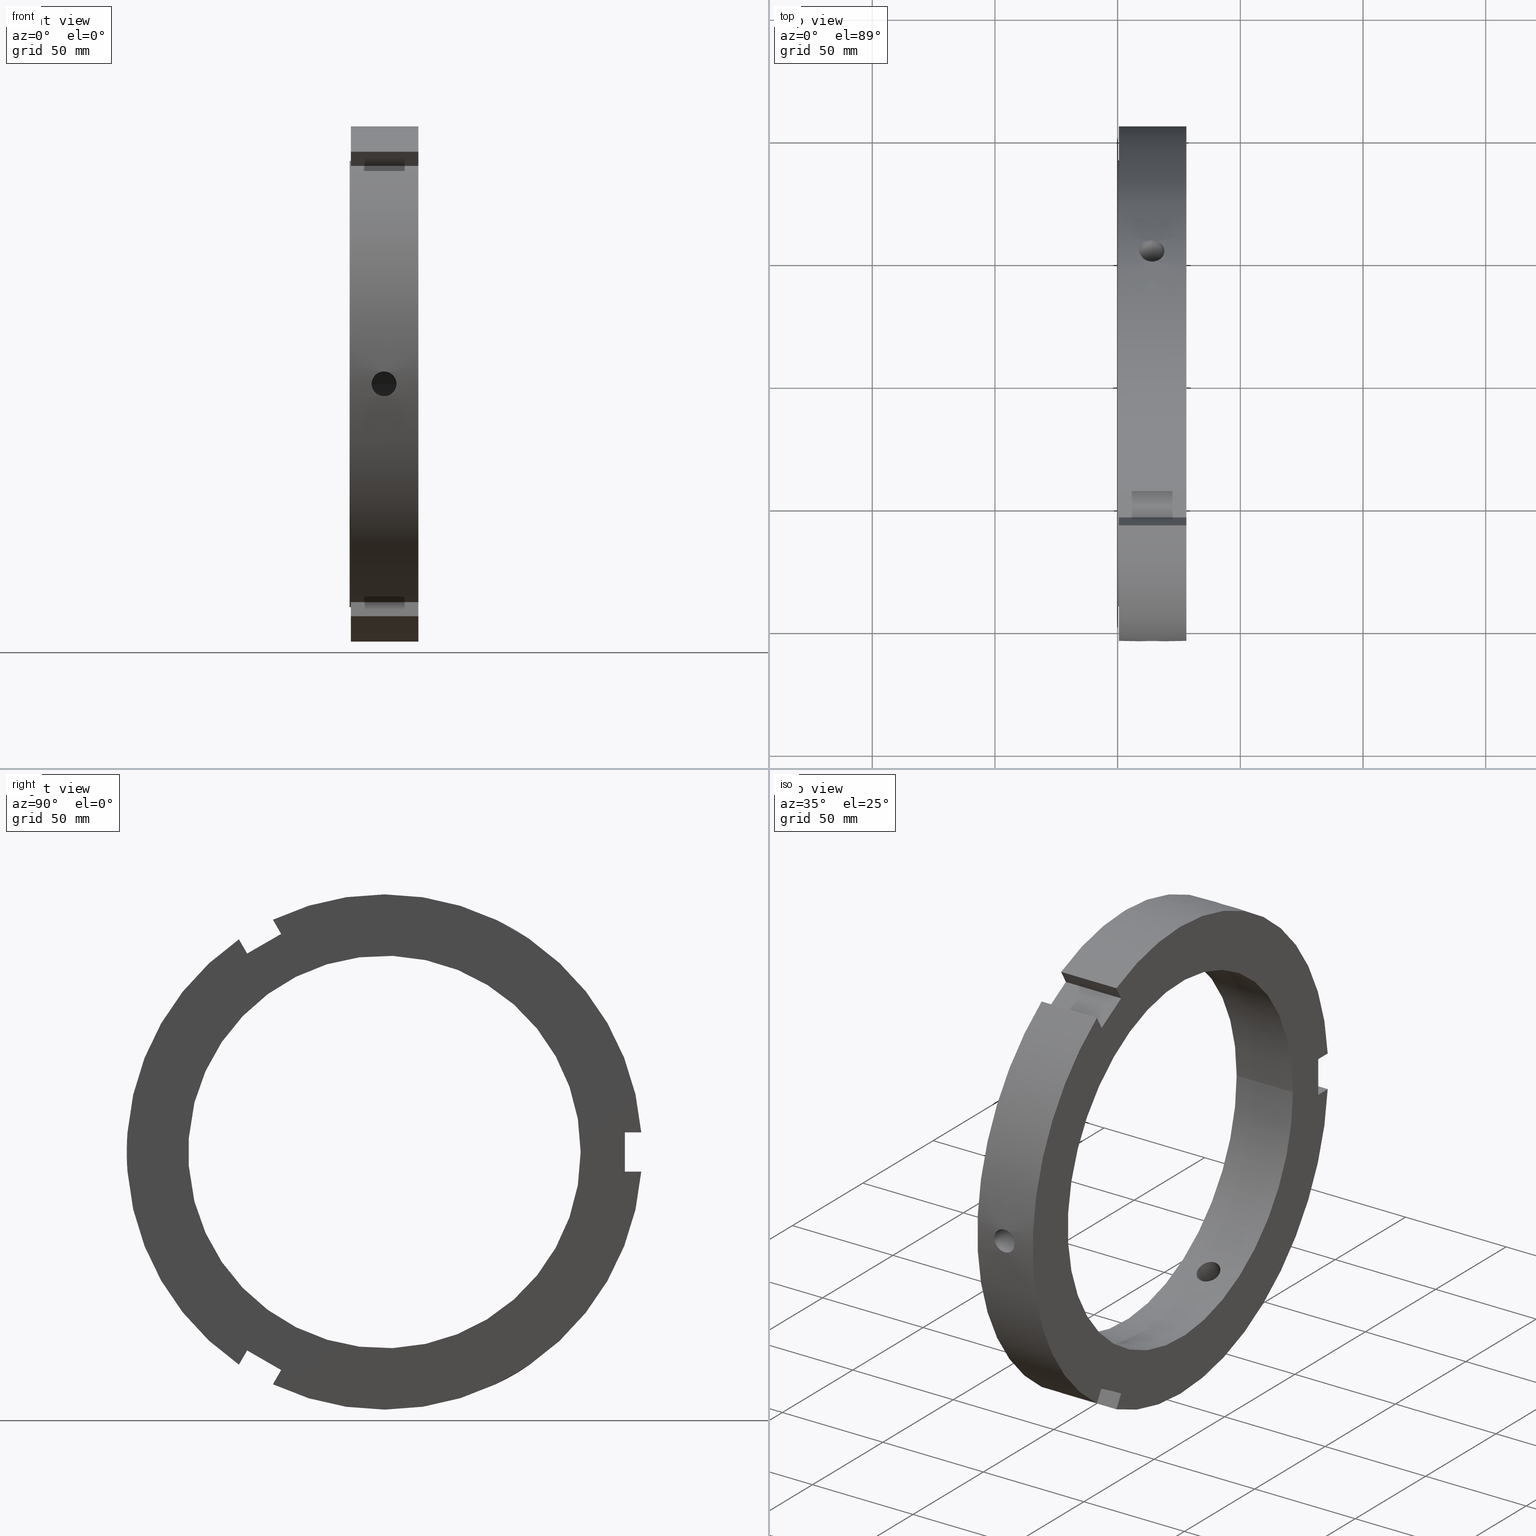
[diagram: canonical four-view strip — front | top / right | iso, engineering-drawing reading convention]
A machine part, canonical four-view strip (front | top / right | iso — engineering-drawing reading convention). The complete STEP part file that produces these views, byte-faithful:
ISO-10303-21;
HEADER;
/****************************************************************
 * Generated by software with PDE/Lib inside                    *
 * PDElib Version v51a, created Thu 01/14/2010                  *
 * ITI Transcendata (http://www.transcendata.com/)              *
 ****************************************************************/
FILE_DESCRIPTION((''),'2;1');
FILE_NAME('\\\\CAD-SVN\\cad-svn\\\X2\628088538AB2\X0\\\FKD\X2\88FD4F5C\X0\SP\\\X2\90E854C130E930A430D630E930EA\X0\\\HP \X2\30A230C330D730C730FC30C87528\X0\CAD\X2\30C730FC30BFFF0867007D42FF09\X0\\\3D data\\ZMT\\FKD ZMT160.stp','2014-07-16T14:52:18',('fkd-ct1n'),(''),'Autodesk Inventor 2011','Autodesk Inventor 2011','');
FILE_SCHEMA(('AUTOMOTIVE_DESIGN { 1 0 10303 214 1 1 1 1 }'));
ENDSEC;
DATA;
#5=APPLICATION_CONTEXT('automotive design');
#6=APPLICATION_PROTOCOL_DEFINITION('International Standard','automotive_design',2001,#5);
#7=PRODUCT_CONTEXT('',#5,'mechanical');
#8=PRODUCT('FKD ZMT160','FKD ZMT160',$,(#7));
#9=PRODUCT_RELATED_PRODUCT_CATEGORY('part',$,(#8));
#10=PRODUCT_DEFINITION_FORMATION('',$,#8);
#11=PRODUCT_DEFINITION_CONTEXT('part definition',#5,'design');
#12=PRODUCT_DEFINITION('',$,#10,#11);
#18=(NAMED_UNIT(*)PLANE_ANGLE_UNIT()SI_UNIT($,.RADIAN.));
#19=DIMENSIONAL_EXPONENTS(0.0,0.0,0.0,0.0,0.0,0.0,0.0);
#20=PLANE_ANGLE_MEASURE_WITH_UNIT(PLANE_ANGLE_MEASURE(0.017453292500000),#18);
#24=(CONVERSION_BASED_UNIT('DEGREE',#20)NAMED_UNIT(#19)PLANE_ANGLE_UNIT());
#28=(NAMED_UNIT(*)SI_UNIT($,.STERADIAN.)SOLID_ANGLE_UNIT());
#32=(LENGTH_UNIT()NAMED_UNIT(*)SI_UNIT(.MILLI.,.METRE.));
#34=UNCERTAINTY_MEASURE_WITH_UNIT(LENGTH_MEASURE(0.010000000000000),#32,'DISTANCE_ACCURACY_VALUE','');
#36=(GEOMETRIC_REPRESENTATION_CONTEXT(3)GLOBAL_UNCERTAINTY_ASSIGNED_CONTEXT((#34))GLOBAL_UNIT_ASSIGNED_CONTEXT((#24,#28,#32))REPRESENTATION_CONTEXT('None','None'));
#37=AXIS2_PLACEMENT_3D('',#38,#39,#40);
#38=CARTESIAN_POINT('',(0.0,0.0,0.0));
#39=DIRECTION('',(0.0,0.0,1.0));
#40=DIRECTION('',(1.0,0.0,0.0));
#41=SHAPE_REPRESENTATION('',(#37),#36);
#42=PRODUCT_DEFINITION_SHAPE('','',#12);
#43=SHAPE_DEFINITION_REPRESENTATION(#42,#41);
#49=(NAMED_UNIT(*)PLANE_ANGLE_UNIT()SI_UNIT($,.RADIAN.));
#50=DIMENSIONAL_EXPONENTS(0.0,0.0,0.0,0.0,0.0,0.0,0.0);
#51=PLANE_ANGLE_MEASURE_WITH_UNIT(PLANE_ANGLE_MEASURE(0.017453292500000),#49);
#55=(CONVERSION_BASED_UNIT('DEGREE',#51)NAMED_UNIT(#50)PLANE_ANGLE_UNIT());
#59=(NAMED_UNIT(*)SI_UNIT($,.STERADIAN.)SOLID_ANGLE_UNIT());
#63=(LENGTH_UNIT()NAMED_UNIT(*)SI_UNIT(.MILLI.,.METRE.));
#65=UNCERTAINTY_MEASURE_WITH_UNIT(LENGTH_MEASURE(0.000001000000000),#63,'DISTANCE_ACCURACY_VALUE','');
#67=(GEOMETRIC_REPRESENTATION_CONTEXT(3)GLOBAL_UNCERTAINTY_ASSIGNED_CONTEXT((#65))GLOBAL_UNIT_ASSIGNED_CONTEXT((#55,#59,#63))REPRESENTATION_CONTEXT('','3D'));
#68=CARTESIAN_POINT('',(27.999999999999979,-55.928203230275557,-80.870489570874966));
#69=DIRECTION('',(0.0,-0.866025403784438,0.500000000000000));
#70=DIRECTION('',(-1.0,0.0,0.0));
#71=AXIS2_PLACEMENT_3D('',#68,#69,#70);
#72=PLANE('',#71);
#73=CARTESIAN_POINT('',(0.499999999999972,-55.928203230275557,-80.870489570874966));
#74=VERTEX_POINT('',#73);
#75=CARTESIAN_POINT('',(0.499999999999972,-59.275600491266481,-86.668351700028140));
#76=VERTEX_POINT('',#75);
#77=CARTESIAN_POINT('',(0.499999999999972,-55.928203230275557,-80.870489570874980));
#78=DIRECTION('',(0.0,-0.500000000000001,-0.866025403784438));
#79=VECTOR('',#78,6.694794521981848);
#80=LINE('',#77,#79);
#81=EDGE_CURVE('',#74,#76,#80,.T.);
#82=ORIENTED_EDGE('',*,*,#81,.F.);
#83=CARTESIAN_POINT('',(27.999999999999979,-55.928203230275557,-80.870489570874966));
#84=VERTEX_POINT('',#83);
#85=CARTESIAN_POINT('',(27.999999999999979,-55.928203230275557,-80.870489570874966));
#86=DIRECTION('',(-1.0,0.0,0.0));
#87=VECTOR('',#86,27.500000000000007);
#88=LINE('',#85,#87);
#89=EDGE_CURVE('',#84,#74,#88,.T.);
#90=ORIENTED_EDGE('',*,*,#89,.F.);
#91=CARTESIAN_POINT('',(27.999999999999979,-59.275600491266481,-86.668351700028140));
#92=VERTEX_POINT('',#91);
#93=CARTESIAN_POINT('',(27.999999999999979,-59.275600491266481,-86.668351700028154));
#94=DIRECTION('',(0.0,0.500000000000000,0.866025403784439));
#95=VECTOR('',#94,6.694794521981860);
#96=LINE('',#93,#95);
#97=EDGE_CURVE('',#92,#84,#96,.T.);
#98=ORIENTED_EDGE('',*,*,#97,.F.);
#99=CARTESIAN_POINT('',(0.499999999999972,-59.275600491266474,-86.668351700028140));
#100=DIRECTION('',(1.0,0.0,0.0));
#101=VECTOR('',#100,27.500000000000007);
#102=LINE('',#99,#101);
#103=EDGE_CURVE('',#76,#92,#102,.T.);
#104=ORIENTED_EDGE('',*,*,#103,.F.);
#105=EDGE_LOOP('',(#82,#90,#98,#104));
#106=FACE_OUTER_BOUND('',#105,.T.);
#107=ADVANCED_FACE('',(#106),#72,.F.);
#108=CARTESIAN_POINT('',(27.999999999999979,-45.571796769724543,-94.932667397366046));
#109=DIRECTION('',(0.0,0.866025403784438,-0.500000000000001));
#110=DIRECTION('',(1.0,0.0,0.0));
#111=AXIS2_PLACEMENT_3D('',#108,#109,#110);
#112=PLANE('',#111);
#113=CARTESIAN_POINT('',(0.499999999999972,-45.419194030715467,-94.668351700028126));
#114=VERTEX_POINT('',#113);
#115=CARTESIAN_POINT('',(0.499999999999972,-42.071796769724529,-88.870489570874980));
#116=VERTEX_POINT('',#115);
#117=CARTESIAN_POINT('',(0.499999999999974,-45.419194030715488,-94.668351700028154));
#118=DIRECTION('',(0.0,0.500000000000000,0.866025403784438));
#119=VECTOR('',#118,6.694794521981844);
#120=LINE('',#117,#119);
#121=EDGE_CURVE('',#114,#116,#120,.T.);
#122=ORIENTED_EDGE('',*,*,#121,.F.);
#123=CARTESIAN_POINT('',(27.999999999999979,-45.419194030715467,-94.668351700028126));
#124=VERTEX_POINT('',#123);
#125=CARTESIAN_POINT('',(27.999999999999979,-45.419194030715460,-94.668351700028126));
#126=DIRECTION('',(-1.0,0.0,0.0));
#127=VECTOR('',#126,27.500000000000007);
#128=LINE('',#125,#127);
#129=EDGE_CURVE('',#124,#114,#128,.T.);
#130=ORIENTED_EDGE('',*,*,#129,.F.);
#131=CARTESIAN_POINT('',(27.999999999999979,-42.071796769724529,-88.870489570874980));
#132=VERTEX_POINT('',#131);
#133=CARTESIAN_POINT('',(27.999999999999979,-42.071796769724550,-88.870489570874980));
#134=DIRECTION('',(0.0,-0.500000000000001,-0.866025403784438));
#135=VECTOR('',#134,6.694794521981848);
#136=LINE('',#133,#135);
#137=EDGE_CURVE('',#132,#124,#136,.T.);
#138=ORIENTED_EDGE('',*,*,#137,.F.);
#139=CARTESIAN_POINT('',(27.999999999999979,-42.071796769724529,-88.870489570874980));
#140=DIRECTION('',(-1.0,0.0,0.0));
#141=VECTOR('',#140,27.500000000000007);
#142=LINE('',#139,#141);
#143=EDGE_CURVE('',#132,#116,#142,.T.);
#144=ORIENTED_EDGE('',*,*,#143,.T.);
#145=EDGE_LOOP('',(#122,#130,#138,#144));
#146=FACE_OUTER_BOUND('',#145,.T.);
#147=ADVANCED_FACE('',(#146),#112,.F.);
#148=CARTESIAN_POINT('',(27.999999999999979,-42.071796769724529,-88.870489570874980));
#149=DIRECTION('',(0.0,0.500000000000001,0.866025403784438));
#150=DIRECTION('',(0.0,-0.866025403784438,0.500000000000000));
#151=AXIS2_PLACEMENT_3D('',#148,#149,#150);
#152=PLANE('',#151);
#153=CARTESIAN_POINT('',(0.499999999999969,-42.071796769724550,-88.870489570874980));
#154=DIRECTION('',(0.0,-0.866025403784438,0.500000000000000));
#155=VECTOR('',#154,16.000000000000014);
#156=LINE('',#153,#155);
#157=EDGE_CURVE('',#116,#74,#156,.T.);
#158=ORIENTED_EDGE('',*,*,#157,.F.);
#159=ORIENTED_EDGE('',*,*,#143,.F.);
#160=CARTESIAN_POINT('',(27.999999999999979,-55.928203230275585,-80.870489570874980));
#161=DIRECTION('',(0.0,0.866025403784438,-0.500000000000000));
#162=VECTOR('',#161,16.000000000000014);
#163=LINE('',#160,#162);
#164=EDGE_CURVE('',#84,#132,#163,.T.);
#165=ORIENTED_EDGE('',*,*,#164,.F.);
#166=ORIENTED_EDGE('',*,*,#89,.T.);
#167=EDGE_LOOP('',(#158,#159,#165,#166));
#168=FACE_OUTER_BOUND('',#167,.T.);
#169=ADVANCED_FACE('',(#168),#152,.F.);
#170=CARTESIAN_POINT('',(13.999999999999979,149.043539653364690,258.150983219534000));
#171=DIRECTION('',(0.0,-0.500000000000001,-0.866025403784438));
#172=DIRECTION('',(-1.0,0.0,0.0));
#173=AXIS2_PLACEMENT_3D('',#170,#171,#172);
#174=CYLINDRICAL_SURFACE('',#173,5.053000000000000);
#175=CARTESIAN_POINT('',(13.999999999999979,56.815198724829017,88.300810833526242));
#176=VERTEX_POINT('',#175);
#177=CARTESIAN_POINT('',(13.999999999999979,56.815198724829010,88.300810833526256));
#178=CARTESIAN_POINT('',(14.634571136471465,56.815198724829010,88.300810833526256));
#179=CARTESIAN_POINT('',(15.311372523950229,56.708528601713645,88.369731266656757));
#180=CARTESIAN_POINT('',(16.556298304530191,56.273388234399732,88.647461310893618));
#181=CARTESIAN_POINT('',(17.124431001535733,55.944757503649846,88.855982155170636));
#182=CARTESIAN_POINT('',(18.021590047831666,55.183068389292970,89.331016002124230));
#183=CARTESIAN_POINT('',(18.410453091665811,54.699181388736676,89.629164600580467));
#184=CARTESIAN_POINT('',(18.926160779767741,53.632510079573741,90.271487492775748));
#185=CARTESIAN_POINT('',(19.052999999999976,53.049554625087438,90.615381886637437));
#186=CARTESIAN_POINT('',(19.052999999999976,51.950445374912647,91.249952908094642));
#187=CARTESIAN_POINT('',(18.926160779767752,51.361146366366242,91.582859944023639));
#188=CARTESIAN_POINT('',(18.410453091665833,50.271542769711374,92.185462949149098));
#189=CARTESIAN_POINT('',(18.021590047831662,49.771395009067390,92.455447084963794));
#190=CARTESIAN_POINT('',(17.124431001535729,48.979159072769676,92.877572284306126));
#191=CARTESIAN_POINT('',(16.556298304530191,48.634259359032285,93.057914423461270));
#192=CARTESIAN_POINT('',(15.311372523950233,48.176167901672017,93.295892013648796));
#193=CARTESIAN_POINT('',(14.634571136471466,48.063145994183472,93.353810833526282));
#194=CARTESIAN_POINT('',(13.365428863528493,48.063145994183472,93.353810833526282));
#195=CARTESIAN_POINT('',(12.688627476049724,48.176167901672017,93.295892013648796));
#196=CARTESIAN_POINT('',(11.443701695469766,48.634259359032285,93.057914423461270));
#197=CARTESIAN_POINT('',(10.875568998464228,48.979159072769676,92.877572284306126));
#198=CARTESIAN_POINT('',(9.978409952168297,49.771395009067390,92.455447084963794));
#199=CARTESIAN_POINT('',(9.589546908334135,50.271542769711374,92.185462949149127));
#200=CARTESIAN_POINT('',(9.073839220232211,51.361146366366235,91.582859944023653));
#201=CARTESIAN_POINT('',(8.946999999999978,51.950445374912661,91.249952908094642));
#202=CARTESIAN_POINT('',(8.946999999999981,53.049554625087438,90.615381886637437));
#203=CARTESIAN_POINT('',(9.073839220232218,53.632510079573741,90.271487492775748));
#204=CARTESIAN_POINT('',(9.589546908334143,54.699181388736676,89.629164600580467));
#205=CARTESIAN_POINT('',(9.978409952168294,55.183068389292970,89.331016002124230));
#206=CARTESIAN_POINT('',(10.875568998464223,55.944757503649846,88.855982155170636));
#207=CARTESIAN_POINT('',(11.443701695469759,56.273388234399732,88.647461310893632));
#208=CARTESIAN_POINT('',(12.688627476049723,56.708528601713645,88.369731266656771));
#209=CARTESIAN_POINT('',(13.365428863528495,56.815198724829017,88.300810833526242));
#210=CARTESIAN_POINT('',(13.999999999999979,56.815198724829017,88.300810833526242));
#211=B_SPLINE_CURVE_WITH_KNOTS('',3,(#177,#178,#179,#180,#181,#182,#183,#184,#185,#186,#187,#188,#189,#190,#191,#192,#193,#194,#195,#196,#197,#198,#199,#200,#201,#202,#203,#204,#205,#206,#207,#208,#209,#210),.UNSPECIFIED.,.T.,.U.,(4,2,2,2,2,2,2,2,2,2,2,2,2,2,2,2,4),(0.0,0.190371340941446,0.380742681882891,0.571113988320056,0.761485294757221,0.951856601194387,1.142227907631552,1.332599248572998,1.522970589514444,1.713341930455890,1.903713271397336,2.094084577834502,2.284455884271667,2.474827190708832,2.665198497145997,2.855569838087442,3.045941179028888),.UNSPECIFIED.);
#212=EDGE_CURVE('',#176,#176,#211,.T.);
#213=ORIENTED_EDGE('',*,*,#212,.F.);
#214=EDGE_LOOP('',(#213));
#215=FACE_OUTER_BOUND('',#214,.T.);
#216=CARTESIAN_POINT('',(13.999999999999979,44.296156597450050,66.617193806810747));
#217=VERTEX_POINT('',#216);
#218=CARTESIAN_POINT('',(13.999999999999979,44.296156597450036,66.617193806810747));
#219=CARTESIAN_POINT('',(13.365352639917933,44.296156597450036,66.617193806810747));
#220=CARTESIAN_POINT('',(12.688518508196953,44.190457807691260,66.687856167907654));
#221=CARTESIAN_POINT('',(11.443613768217025,43.758895766243270,66.971828127421446));
#222=CARTESIAN_POINT('',(10.875528814468643,43.432823006197495,67.184756272600595));
#223=CARTESIAN_POINT('',(9.978450296488965,42.675983174635661,67.668028267102954));
#224=CARTESIAN_POINT('',(9.589598745661265,42.194680176431206,67.970557144507353));
#225=CARTESIAN_POINT('',(9.073868925500680,41.131612416153686,68.619079954267178));
#226=CARTESIAN_POINT('',(8.946999999999981,40.549620440194225,68.964708793656825));
#227=CARTESIAN_POINT('',(8.946999999999978,39.450379559805846,69.599355811853314));
#228=CARTESIAN_POINT('',(9.073868925500678,38.860060216634153,69.930561228138075));
#229=CARTESIAN_POINT('',(9.589598745661249,37.766889108309712,70.526943509602717));
#230=CARTESIAN_POINT('',(9.978450296488967,37.264239915996896,70.792499694263199));
#231=CARTESIAN_POINT('',(10.875528814468641,36.467294176039346,71.206306217740519));
#232=CARTESIAN_POINT('',(11.443613768217011,36.119856613110599,71.382229438832681));
#233=CARTESIAN_POINT('',(12.688518508196939,35.658148661485214,71.613987150278831));
#234=CARTESIAN_POINT('',(13.365352639917932,35.544103866804491,71.670193806810715));
#235=CARTESIAN_POINT('',(14.634647360082024,35.544103866804491,71.670193806810715));
#236=CARTESIAN_POINT('',(15.311481491803010,35.658148661485214,71.613987150278831));
#237=CARTESIAN_POINT('',(16.556386231782938,36.119856613110599,71.382229438832695));
#238=CARTESIAN_POINT('',(17.124471185531316,36.467294176039346,71.206306217740519));
#239=CARTESIAN_POINT('',(18.021549703510988,37.264239915996889,70.792499694263199));
#240=CARTESIAN_POINT('',(18.410401254338705,37.766889108309712,70.526943509602731));
#241=CARTESIAN_POINT('',(18.926131074499285,38.860060216634153,69.930561228138089));
#242=CARTESIAN_POINT('',(19.052999999999976,39.450379559805839,69.599355811853314));
#243=CARTESIAN_POINT('',(19.052999999999976,40.549620440194225,68.964708793656825));
#244=CARTESIAN_POINT('',(18.926131074499285,41.131612416153686,68.619079954267193));
#245=CARTESIAN_POINT('',(18.410401254338701,42.194680176431206,67.970557144507367));
#246=CARTESIAN_POINT('',(18.021549703510995,42.675983174635661,67.668028267102954));
#247=CARTESIAN_POINT('',(17.124471185531320,43.432823006197509,67.184756272600595));
#248=CARTESIAN_POINT('',(16.556386231782934,43.758895766243270,66.971828127421446));
#249=CARTESIAN_POINT('',(15.311481491803004,44.190457807691260,66.687856167907654));
#250=CARTESIAN_POINT('',(14.634647360082022,44.296156597450036,66.617193806810747));
#251=CARTESIAN_POINT('',(13.999999999999977,44.296156597450036,66.617193806810747));
#252=B_SPLINE_CURVE_WITH_KNOTS('',3,(#218,#219,#220,#221,#222,#223,#224,#225,#226,#227,#228,#229,#230,#231,#232,#233,#234,#235,#236,#237,#238,#239,#240,#241,#242,#243,#244,#245,#246,#247,#248,#249,#250,#251),.UNSPECIFIED.,.T.,.U.,(4,2,2,2,2,2,2,2,2,2,2,2,2,2,2,2,4),(0.0,0.190394208024614,0.380788416049228,0.571182521508171,0.761576626967114,0.951970732426058,1.142364837885001,1.332759045909616,1.523153253934230,1.713547461958844,1.903941669983459,2.094335775442402,2.284729880901345,2.475123986360289,2.665518091819231,2.855912299843846,3.046306507868460),.UNSPECIFIED.);
#253=EDGE_CURVE('',#217,#217,#252,.T.);
#254=ORIENTED_EDGE('',*,*,#253,.F.);
#255=EDGE_LOOP('',(#254));
#256=FACE_BOUND('',#255,.T.);
#257=ADVANCED_FACE('',(#215,#256),#174,.F.);
#258=CARTESIAN_POINT('',(27.999999999999979,-42.071796769724479,88.870489570875009));
#259=DIRECTION('',(0.0,0.866025403784439,0.500000000000000));
#260=DIRECTION('',(-1.0,0.0,0.0));
#261=AXIS2_PLACEMENT_3D('',#258,#259,#260);
#262=PLANE('',#261);
#263=CARTESIAN_POINT('',(0.499999999999972,-42.071796769724479,88.870489570875009));
#264=VERTEX_POINT('',#263);
#265=CARTESIAN_POINT('',(0.499999999999972,-45.419194030715396,94.668351700028182));
#266=VERTEX_POINT('',#265);
#267=CARTESIAN_POINT('',(0.499999999999972,-42.071796769724479,88.870489570875009));
#268=DIRECTION('',(0.0,-0.500000000000000,0.866025403784438));
#269=VECTOR('',#268,6.694794521981844);
#270=LINE('',#267,#269);
#271=EDGE_CURVE('',#264,#266,#270,.T.);
#272=ORIENTED_EDGE('',*,*,#271,.F.);
#273=CARTESIAN_POINT('',(27.999999999999979,-42.071796769724479,88.870489570875009));
#274=VERTEX_POINT('',#273);
#275=CARTESIAN_POINT('',(27.999999999999979,-42.071796769724479,88.870489570875009));
#276=DIRECTION('',(-1.0,0.0,0.0));
#277=VECTOR('',#276,27.500000000000007);
#278=LINE('',#275,#277);
#279=EDGE_CURVE('',#274,#264,#278,.T.);
#280=ORIENTED_EDGE('',*,*,#279,.F.);
#281=CARTESIAN_POINT('',(27.999999999999979,-45.419194030715396,94.668351700028182));
#282=VERTEX_POINT('',#281);
#283=CARTESIAN_POINT('',(27.999999999999979,-45.419194030715403,94.668351700028211));
#284=DIRECTION('',(0.0,0.499999999999999,-0.866025403784439));
#285=VECTOR('',#284,6.694794521981873);
#286=LINE('',#283,#285);
#287=EDGE_CURVE('',#282,#274,#286,.T.);
#288=ORIENTED_EDGE('',*,*,#287,.F.);
#289=CARTESIAN_POINT('',(0.499999999999972,-45.419194030715396,94.668351700028168));
#290=DIRECTION('',(1.0,0.0,0.0));
#291=VECTOR('',#290,27.500000000000007);
#292=LINE('',#289,#291);
#293=EDGE_CURVE('',#266,#282,#292,.T.);
#294=ORIENTED_EDGE('',*,*,#293,.F.);
#295=EDGE_LOOP('',(#272,#280,#288,#294));
#296=FACE_OUTER_BOUND('',#295,.T.);
#297=ADVANCED_FACE('',(#296),#262,.F.);
#298=CARTESIAN_POINT('',(27.999999999999979,-59.428203230275486,86.932667397366075));
#299=DIRECTION('',(0.0,-0.866025403784439,-0.500000000000000));
#300=DIRECTION('',(1.0,0.0,0.0));
#301=AXIS2_PLACEMENT_3D('',#298,#299,#300);
#302=PLANE('',#301);
#303=CARTESIAN_POINT('',(0.499999999999972,-59.275600491266410,86.668351700028182));
#304=VERTEX_POINT('',#303);
#305=CARTESIAN_POINT('',(0.499999999999972,-55.928203230275493,80.870489570875009));
#306=VERTEX_POINT('',#305);
#307=CARTESIAN_POINT('',(0.499999999999969,-59.275600491266424,86.668351700028182));
#308=DIRECTION('',(0.0,0.499999999999999,-0.866025403784439));
#309=VECTOR('',#308,6.694794521981842);
#310=LINE('',#307,#309);
#311=EDGE_CURVE('',#304,#306,#310,.T.);
#312=ORIENTED_EDGE('',*,*,#311,.F.);
#313=CARTESIAN_POINT('',(27.999999999999979,-59.275600491266410,86.668351700028182));
#314=VERTEX_POINT('',#313);
#315=CARTESIAN_POINT('',(27.999999999999979,-59.275600491266410,86.668351700028197));
#316=DIRECTION('',(-1.0,0.0,0.0));
#317=VECTOR('',#316,27.500000000000007);
#318=LINE('',#315,#317);
#319=EDGE_CURVE('',#314,#304,#318,.T.);
#320=ORIENTED_EDGE('',*,*,#319,.F.);
#321=CARTESIAN_POINT('',(27.999999999999979,-55.928203230275493,80.870489570875009));
#322=VERTEX_POINT('',#321);
#323=CARTESIAN_POINT('',(27.999999999999979,-55.928203230275500,80.870489570875023));
#324=DIRECTION('',(0.0,-0.500000000000000,0.866025403784438));
#325=VECTOR('',#324,6.694794521981828);
#326=LINE('',#323,#325);
#327=EDGE_CURVE('',#322,#314,#326,.T.);
#328=ORIENTED_EDGE('',*,*,#327,.F.);
#329=CARTESIAN_POINT('',(27.999999999999979,-55.928203230275493,80.870489570875009));
#330=DIRECTION('',(-1.0,0.0,0.0));
#331=VECTOR('',#330,27.500000000000007);
#332=LINE('',#329,#331);
#333=EDGE_CURVE('',#322,#306,#332,.T.);
#334=ORIENTED_EDGE('',*,*,#333,.T.);
#335=EDGE_LOOP('',(#312,#320,#328,#334));
#336=FACE_OUTER_BOUND('',#335,.T.);
#337=ADVANCED_FACE('',(#336),#302,.F.);
#338=CARTESIAN_POINT('',(27.999999999999979,-55.928203230275493,80.870489570875009));
#339=DIRECTION('',(0.0,0.500000000000000,-0.866025403784439));
#340=DIRECTION('',(0.0,0.866025403784439,0.500000000000000));
#341=AXIS2_PLACEMENT_3D('',#338,#339,#340);
#342=PLANE('',#341);
#343=CARTESIAN_POINT('',(0.499999999999974,-55.928203230275493,80.870489570875009));
#344=DIRECTION('',(0.0,0.866025403784439,0.500000000000000));
#345=VECTOR('',#344,15.999999999999982);
#346=LINE('',#343,#345);
#347=EDGE_CURVE('',#306,#264,#346,.T.);
#348=ORIENTED_EDGE('',*,*,#347,.F.);
#349=ORIENTED_EDGE('',*,*,#333,.F.);
#350=CARTESIAN_POINT('',(27.999999999999979,-42.071796769724486,88.870489570874994));
#351=DIRECTION('',(0.0,-0.866025403784439,-0.499999999999999));
#352=VECTOR('',#351,15.999999999999989);
#353=LINE('',#350,#352);
#354=EDGE_CURVE('',#274,#322,#353,.T.);
#355=ORIENTED_EDGE('',*,*,#354,.F.);
#356=ORIENTED_EDGE('',*,*,#279,.T.);
#357=EDGE_LOOP('',(#348,#349,#355,#356));
#358=FACE_OUTER_BOUND('',#357,.T.);
#359=ADVANCED_FACE('',(#358),#342,.F.);
#360=CARTESIAN_POINT('',(13.999999999999979,149.043539653364460,-258.150983219534060));
#361=DIRECTION('',(0.0,-0.500000000000000,0.866025403784439));
#362=DIRECTION('',(-1.0,0.0,0.0));
#363=AXIS2_PLACEMENT_3D('',#360,#361,#362);
#364=CYLINDRICAL_SURFACE('',#363,5.053000000000000);
#365=CARTESIAN_POINT('',(13.999999999999979,48.063145994183422,-93.353810833526282));
#366=VERTEX_POINT('',#365);
#367=CARTESIAN_POINT('',(13.999999999999977,48.063145994183422,-93.353810833526282));
#368=CARTESIAN_POINT('',(14.634571136471466,48.063145994183422,-93.353810833526282));
#369=CARTESIAN_POINT('',(15.311372523950233,48.176167901671967,-93.295892013648810));
#370=CARTESIAN_POINT('',(16.556298304530198,48.634259359032228,-93.057914423461284));
#371=CARTESIAN_POINT('',(17.124431001535736,48.979159072769619,-92.877572284306140));
#372=CARTESIAN_POINT('',(18.021590047831658,49.771395009067334,-92.455447084963794));
#373=CARTESIAN_POINT('',(18.410453091665836,50.271542769711324,-92.185462949149155));
#374=CARTESIAN_POINT('',(18.926160779767752,51.361146366366199,-91.582859944023696));
#375=CARTESIAN_POINT('',(19.052999999999980,51.950445374912597,-91.249952908094656));
#376=CARTESIAN_POINT('',(19.052999999999972,53.049554625087382,-90.615381886637451));
#377=CARTESIAN_POINT('',(18.926160779767738,53.632510079573699,-90.271487492775776));
#378=CARTESIAN_POINT('',(18.410453091665808,54.699181388736633,-89.629164600580481));
#379=CARTESIAN_POINT('',(18.021590047831662,55.183068389292913,-89.331016002124244));
#380=CARTESIAN_POINT('',(17.124431001535729,55.944757503649789,-88.855982155170636));
#381=CARTESIAN_POINT('',(16.556298304530188,56.273388234399661,-88.647461310893647));
#382=CARTESIAN_POINT('',(15.311372523950229,56.708528601713574,-88.369731266656800));
#383=CARTESIAN_POINT('',(14.634571136471465,56.815198724828953,-88.300810833526256));
#384=CARTESIAN_POINT('',(13.365428863528495,56.815198724828953,-88.300810833526256));
#385=CARTESIAN_POINT('',(12.688627476049730,56.708528601713574,-88.369731266656800));
#386=CARTESIAN_POINT('',(11.443701695469773,56.273388234399661,-88.647461310893647));
#387=CARTESIAN_POINT('',(10.875568998464228,55.944757503649789,-88.855982155170636));
#388=CARTESIAN_POINT('',(9.978409952168297,55.183068389292913,-89.331016002124244));
#389=CARTESIAN_POINT('',(9.589546908334151,54.699181388736633,-89.629164600580481));
#390=CARTESIAN_POINT('',(9.073839220232221,53.632510079573692,-90.271487492775776));
#391=CARTESIAN_POINT('',(8.946999999999983,53.049554625087382,-90.615381886637465));
#392=CARTESIAN_POINT('',(8.946999999999976,51.950445374912597,-91.249952908094656));
#393=CARTESIAN_POINT('',(9.073839220232213,51.361146366366171,-91.582859944023696));
#394=CARTESIAN_POINT('',(9.589546908334130,50.271542769711310,-92.185462949149155));
#395=CARTESIAN_POINT('',(9.978409952168295,49.771395009067341,-92.455447084963794));
#396=CARTESIAN_POINT('',(10.875568998464221,48.979159072769619,-92.877572284306140));
#397=CARTESIAN_POINT('',(11.443701695469757,48.634259359032228,-93.057914423461284));
#398=CARTESIAN_POINT('',(12.688627476049723,48.176167901671967,-93.295892013648810));
#399=CARTESIAN_POINT('',(13.365428863528487,48.063145994183422,-93.353810833526282));
#400=CARTESIAN_POINT('',(13.999999999999977,48.063145994183422,-93.353810833526282));
#401=B_SPLINE_CURVE_WITH_KNOTS('',3,(#367,#368,#369,#370,#371,#372,#373,#374,#375,#376,#377,#378,#379,#380,#381,#382,#383,#384,#385,#386,#387,#388,#389,#390,#391,#392,#393,#394,#395,#396,#397,#398,#399,#400),.UNSPECIFIED.,.T.,.U.,(4,2,2,2,2,2,2,2,2,2,2,2,2,2,2,2,4),(0.0,0.190371340941447,0.380742681882893,0.571113988320058,0.761485294757222,0.951856601194387,1.142227907631553,1.332599248572998,1.522970589514444,1.713341930455890,1.903713271397335,2.094084577834500,2.284455884271666,2.474827190708830,2.665198497145995,2.855569838087441,3.045941179028888),.UNSPECIFIED.);
#402=EDGE_CURVE('',#366,#366,#401,.T.);
#403=ORIENTED_EDGE('',*,*,#402,.F.);
#404=EDGE_LOOP('',(#403));
#405=FACE_OUTER_BOUND('',#404,.T.);
#406=CARTESIAN_POINT('',(13.999999999999979,35.544103866804463,-71.670193806810772));
#407=VERTEX_POINT('',#406);
#408=CARTESIAN_POINT('',(13.999999999999979,35.544103866804463,-71.670193806810758));
#409=CARTESIAN_POINT('',(13.365352639917930,35.544103866804463,-71.670193806810758));
#410=CARTESIAN_POINT('',(12.688518508196942,35.658148661485171,-71.613987150278845));
#411=CARTESIAN_POINT('',(11.443613768217011,36.119856613110557,-71.382229438832695));
#412=CARTESIAN_POINT('',(10.875528814468641,36.467294176039296,-71.206306217740519));
#413=CARTESIAN_POINT('',(9.978450296488965,37.264239915996839,-70.792499694263199));
#414=CARTESIAN_POINT('',(9.589598745661249,37.766889108309677,-70.526943509602759));
#415=CARTESIAN_POINT('',(9.073868925500676,38.860060216634110,-69.930561228138103));
#416=CARTESIAN_POINT('',(8.946999999999978,39.450379559805782,-69.599355811853329));
#417=CARTESIAN_POINT('',(8.946999999999981,40.549620440194182,-68.964708793656854));
#418=CARTESIAN_POINT('',(9.073868925500682,41.131612416153651,-68.619079954267207));
#419=CARTESIAN_POINT('',(9.589598745661263,42.194680176431177,-67.970557144507382));
#420=CARTESIAN_POINT('',(9.978450296488964,42.675983174635626,-67.668028267102983));
#421=CARTESIAN_POINT('',(10.875528814468645,43.432823006197466,-67.184756272600609));
#422=CARTESIAN_POINT('',(11.443613768217027,43.758895766243228,-66.971828127421475));
#423=CARTESIAN_POINT('',(12.688518508196953,44.190457807691210,-66.687856167907682));
#424=CARTESIAN_POINT('',(13.365352639917933,44.296156597450000,-66.617193806810747));
#425=CARTESIAN_POINT('',(14.634647360082024,44.296156597450000,-66.617193806810747));
#426=CARTESIAN_POINT('',(15.311481491803004,44.190457807691210,-66.687856167907682));
#427=CARTESIAN_POINT('',(16.556386231782930,43.758895766243228,-66.971828127421475));
#428=CARTESIAN_POINT('',(17.124471185531313,43.432823006197466,-67.184756272600609));
#429=CARTESIAN_POINT('',(18.021549703510992,42.675983174635626,-67.668028267102983));
#430=CARTESIAN_POINT('',(18.410401254338701,42.194680176431163,-67.970557144507382));
#431=CARTESIAN_POINT('',(18.926131074499281,41.131612416153629,-68.619079954267221));
#432=CARTESIAN_POINT('',(19.052999999999976,40.549620440194182,-68.964708793656854));
#433=CARTESIAN_POINT('',(19.052999999999976,39.450379559805789,-69.599355811853329));
#434=CARTESIAN_POINT('',(18.926131074499285,38.860060216634110,-69.930561228138103));
#435=CARTESIAN_POINT('',(18.410401254338709,37.766889108309670,-70.526943509602745));
#436=CARTESIAN_POINT('',(18.021549703510992,37.264239915996839,-70.792499694263199));
#437=CARTESIAN_POINT('',(17.124471185531323,36.467294176039296,-71.206306217740519));
#438=CARTESIAN_POINT('',(16.556386231782948,36.119856613110557,-71.382229438832695));
#439=CARTESIAN_POINT('',(15.311481491803018,35.658148661485164,-71.613987150278845));
#440=CARTESIAN_POINT('',(14.634647360082029,35.544103866804463,-71.670193806810758));
#441=CARTESIAN_POINT('',(13.999999999999979,35.544103866804463,-71.670193806810758));
#442=B_SPLINE_CURVE_WITH_KNOTS('',3,(#408,#409,#410,#411,#412,#413,#414,#415,#416,#417,#418,#419,#420,#421,#422,#423,#424,#425,#426,#427,#428,#429,#430,#431,#432,#433,#434,#435,#436,#437,#438,#439,#440,#441),.UNSPECIFIED.,.T.,.U.,(4,2,2,2,2,2,2,2,2,2,2,2,2,2,2,2,4),(0.0,0.190394208024615,0.380788416049229,0.571182521508172,0.761576626967115,0.951970732426059,1.142364837885003,1.332759045909617,1.523153253934230,1.713547461958844,1.903941669983458,2.094335775442402,2.284729880901346,2.475123986360289,2.665518091819231,2.855912299843846,3.046306507868461),.UNSPECIFIED.);
#443=EDGE_CURVE('',#407,#407,#442,.T.);
#444=ORIENTED_EDGE('',*,*,#443,.F.);
#445=EDGE_LOOP('',(#444));
#446=FACE_BOUND('',#445,.T.);
#447=ADVANCED_FACE('',(#405,#446),#364,.F.);
#448=CARTESIAN_POINT('',(27.999999999999979,92.500000000000000,0.0));
#449=DIRECTION('',(1.0,0.0,0.0));
#450=DIRECTION('',(0.0,0.0,-1.0));
#451=AXIS2_PLACEMENT_3D('',#448,#449,#450);
#452=PLANE('',#451);
#453=ORIENTED_EDGE('',*,*,#97,.T.);
#454=ORIENTED_EDGE('',*,*,#164,.T.);
#455=ORIENTED_EDGE('',*,*,#137,.T.);
#456=CARTESIAN_POINT('',(27.999999999999979,104.694794521981850,-7.999999999999995));
#457=VERTEX_POINT('',#456);
#458=CARTESIAN_POINT('',(27.999999999999979,0.0,0.0));
#459=DIRECTION('',(1.0,0.0,0.0));
#460=DIRECTION('',(0.0,1.0,0.0));
#461=AXIS2_PLACEMENT_3D('',#458,#459,#460);
#462=CIRCLE('',#461,105.0);
#463=EDGE_CURVE('',#124,#457,#462,.T.);
#464=ORIENTED_EDGE('',*,*,#463,.T.);
#465=CARTESIAN_POINT('',(27.999999999999979,98.0,-7.999999999999996));
#466=VERTEX_POINT('',#465);
#467=CARTESIAN_POINT('',(27.999999999999979,104.694794521981830,-7.999999999999995));
#468=DIRECTION('',(0.0,-1.0,0.0));
#469=VECTOR('',#468,6.694794521981834);
#470=LINE('',#467,#469);
#471=EDGE_CURVE('',#457,#466,#470,.T.);
#472=ORIENTED_EDGE('',*,*,#471,.T.);
#473=CARTESIAN_POINT('',(27.999999999999979,98.0,7.999999999999996));
#474=VERTEX_POINT('',#473);
#475=CARTESIAN_POINT('',(27.999999999999979,98.0,-7.999999999999995));
#476=DIRECTION('',(0.0,0.0,1.0));
#477=VECTOR('',#476,15.999999999999991);
#478=LINE('',#475,#477);
#479=EDGE_CURVE('',#466,#474,#478,.T.);
#480=ORIENTED_EDGE('',*,*,#479,.T.);
#481=CARTESIAN_POINT('',(27.999999999999979,104.694794521981850,7.999999999999995));
#482=VERTEX_POINT('',#481);
#483=CARTESIAN_POINT('',(27.999999999999979,98.0,7.999999999999996));
#484=DIRECTION('',(0.0,1.0,0.0));
#485=VECTOR('',#484,6.694794521981848);
#486=LINE('',#483,#485);
#487=EDGE_CURVE('',#474,#482,#486,.T.);
#488=ORIENTED_EDGE('',*,*,#487,.T.);
#489=CARTESIAN_POINT('',(27.999999999999979,0.0,0.0));
#490=DIRECTION('',(1.0,0.0,0.0));
#491=DIRECTION('',(0.0,1.0,0.0));
#492=AXIS2_PLACEMENT_3D('',#489,#490,#491);
#493=CIRCLE('',#492,105.0);
#494=EDGE_CURVE('',#482,#282,#493,.T.);
#495=ORIENTED_EDGE('',*,*,#494,.T.);
#496=ORIENTED_EDGE('',*,*,#287,.T.);
#497=ORIENTED_EDGE('',*,*,#354,.T.);
#498=ORIENTED_EDGE('',*,*,#327,.T.);
#499=CARTESIAN_POINT('',(27.999999999999979,0.0,0.0));
#500=DIRECTION('',(1.0,0.0,0.0));
#501=DIRECTION('',(0.0,1.0,0.0));
#502=AXIS2_PLACEMENT_3D('',#499,#500,#501);
#503=CIRCLE('',#502,105.0);
#504=EDGE_CURVE('',#314,#92,#503,.T.);
#505=ORIENTED_EDGE('',*,*,#504,.T.);
#506=EDGE_LOOP('',(#453,#454,#455,#464,#472,#480,#488,#495,#496,#497,#498,#505));
#507=FACE_OUTER_BOUND('',#506,.T.);
#508=CARTESIAN_POINT('',(27.999999999999986,80.0,0.0));
#509=VERTEX_POINT('',#508);
#510=CARTESIAN_POINT('',(27.999999999999979,0.0,0.0));
#511=DIRECTION('',(1.0,0.0,0.0));
#512=DIRECTION('',(0.0,1.0,0.0));
#513=AXIS2_PLACEMENT_3D('',#510,#511,#512);
#514=CIRCLE('',#513,80.0);
#515=EDGE_CURVE('',#509,#509,#514,.T.);
#516=ORIENTED_EDGE('',*,*,#515,.F.);
#517=EDGE_LOOP('',(#516));
#518=FACE_BOUND('',#517,.T.);
#519=ADVANCED_FACE('',(#507,#518),#452,.T.);
#520=CARTESIAN_POINT('',(14.249999999999975,0.0,0.0));
#521=DIRECTION('',(1.0,0.0,0.0));
#522=DIRECTION('',(0.0,1.0,0.0));
#523=AXIS2_PLACEMENT_3D('',#520,#521,#522);
#524=CYLINDRICAL_SURFACE('',#523,105.0);
#525=ORIENTED_EDGE('',*,*,#293,.T.);
#526=ORIENTED_EDGE('',*,*,#494,.F.);
#527=CARTESIAN_POINT('',(0.499999999999972,104.694794521981850,7.999999999999995));
#528=VERTEX_POINT('',#527);
#529=CARTESIAN_POINT('',(27.999999999999979,104.694794521981850,7.999999999999995));
#530=DIRECTION('',(-1.0,0.0,0.0));
#531=VECTOR('',#530,27.500000000000007);
#532=LINE('',#529,#531);
#533=EDGE_CURVE('',#482,#528,#532,.T.);
#534=ORIENTED_EDGE('',*,*,#533,.T.);
#535=CARTESIAN_POINT('',(0.499999999999972,0.0,0.0));
#536=DIRECTION('',(1.0,0.0,0.0));
#537=DIRECTION('',(0.0,1.0,0.0));
#538=AXIS2_PLACEMENT_3D('',#535,#536,#537);
#539=CIRCLE('',#538,105.0);
#540=EDGE_CURVE('',#528,#266,#539,.T.);
#541=ORIENTED_EDGE('',*,*,#540,.T.);
#542=EDGE_LOOP('',(#525,#526,#534,#541));
#543=FACE_OUTER_BOUND('',#542,.T.);
#544=ORIENTED_EDGE('',*,*,#212,.T.);
#545=EDGE_LOOP('',(#544));
#546=FACE_BOUND('',#545,.T.);
#547=ADVANCED_FACE('',(#543,#546),#524,.T.);
#548=CARTESIAN_POINT('',(14.249999999999975,0.0,0.0));
#549=DIRECTION('',(1.0,0.0,0.0));
#550=DIRECTION('',(0.0,1.0,0.0));
#551=AXIS2_PLACEMENT_3D('',#548,#549,#550);
#552=CYLINDRICAL_SURFACE('',#551,105.0);
#553=ORIENTED_EDGE('',*,*,#129,.T.);
#554=CARTESIAN_POINT('',(0.499999999999972,104.694794521981850,-7.999999999999995));
#555=VERTEX_POINT('',#554);
#556=CARTESIAN_POINT('',(0.499999999999972,0.0,0.0));
#557=DIRECTION('',(1.0,0.0,0.0));
#558=DIRECTION('',(0.0,1.0,0.0));
#559=AXIS2_PLACEMENT_3D('',#556,#557,#558);
#560=CIRCLE('',#559,105.0);
#561=EDGE_CURVE('',#114,#555,#560,.T.);
#562=ORIENTED_EDGE('',*,*,#561,.T.);
#563=CARTESIAN_POINT('',(0.499999999999972,104.694794521981850,-7.999999999999995));
#564=DIRECTION('',(1.0,0.0,0.0));
#565=VECTOR('',#564,27.500000000000007);
#566=LINE('',#563,#565);
#567=EDGE_CURVE('',#555,#457,#566,.T.);
#568=ORIENTED_EDGE('',*,*,#567,.T.);
#569=ORIENTED_EDGE('',*,*,#463,.F.);
#570=EDGE_LOOP('',(#553,#562,#568,#569));
#571=FACE_OUTER_BOUND('',#570,.T.);
#572=ORIENTED_EDGE('',*,*,#402,.T.);
#573=EDGE_LOOP('',(#572));
#574=FACE_BOUND('',#573,.T.);
#575=ADVANCED_FACE('',(#571,#574),#552,.T.);
#576=CARTESIAN_POINT('',(14.249999999999975,0.0,0.0));
#577=DIRECTION('',(1.0,0.0,0.0));
#578=DIRECTION('',(0.0,1.0,0.0));
#579=AXIS2_PLACEMENT_3D('',#576,#577,#578);
#580=CYLINDRICAL_SURFACE('',#579,105.0);
#581=ORIENTED_EDGE('',*,*,#103,.T.);
#582=ORIENTED_EDGE('',*,*,#504,.F.);
#583=ORIENTED_EDGE('',*,*,#319,.T.);
#584=CARTESIAN_POINT('',(0.499999999999972,0.0,0.0));
#585=DIRECTION('',(1.0,0.0,0.0));
#586=DIRECTION('',(0.0,1.0,0.0));
#587=AXIS2_PLACEMENT_3D('',#584,#585,#586);
#588=CIRCLE('',#587,105.0);
#589=EDGE_CURVE('',#304,#76,#588,.T.);
#590=ORIENTED_EDGE('',*,*,#589,.T.);
#591=EDGE_LOOP('',(#581,#582,#583,#590));
#592=FACE_OUTER_BOUND('',#591,.T.);
#593=CARTESIAN_POINT('',(13.999999999999979,-104.878344719012400,5.053000000000000));
#594=VERTEX_POINT('',#593);
#595=CARTESIAN_POINT('',(13.999999999999979,-104.878344719012400,5.053000000000000));
#596=CARTESIAN_POINT('',(14.634571136471465,-104.878344719012400,5.053000000000000));
#597=CARTESIAN_POINT('',(15.311372523950235,-104.884696503385600,4.926160746992009));
#598=CARTESIAN_POINT('',(16.556298304530198,-104.907647593431950,4.410453112567629));
#599=CARTESIAN_POINT('',(17.124431001535733,-104.923916576419430,4.021590129135494));
#600=CARTESIAN_POINT('',(18.021590047831666,-104.954463398360250,3.124431082839566));
#601=CARTESIAN_POINT('',(18.410453091665818,-104.970724158447960,2.556298348568645));
#602=CARTESIAN_POINT('',(18.926160779767745,-104.993656445939880,1.311372451247898));
#603=CARTESIAN_POINT('',(19.052999999999976,-105.0,0.634571021457217));
#604=CARTESIAN_POINT('',(19.052999999999976,-105.0,-0.634571021457216));
#605=CARTESIAN_POINT('',(18.926160779767745,-104.993656445939880,-1.311372451247897));
#606=CARTESIAN_POINT('',(18.410453091665818,-104.970724158447960,-2.556298348568644));
#607=CARTESIAN_POINT('',(18.021590047831666,-104.954463398360250,-3.124431082839565));
#608=CARTESIAN_POINT('',(17.124431001535736,-104.923916576419430,-4.021590129135494));
#609=CARTESIAN_POINT('',(16.556298304530198,-104.907647593431950,-4.410453112567629));
#610=CARTESIAN_POINT('',(15.311372523950235,-104.884696503385600,-4.926160746992009));
#611=CARTESIAN_POINT('',(14.634571136471466,-104.878344719012400,-5.053000000000000));
#612=CARTESIAN_POINT('',(13.365428863528495,-104.878344719012400,-5.053000000000000));
#613=CARTESIAN_POINT('',(12.688627476049723,-104.884696503385600,-4.926160746992009));
#614=CARTESIAN_POINT('',(11.443701695469761,-104.907647593431950,-4.410453112567629));
#615=CARTESIAN_POINT('',(10.875568998464225,-104.923916576419430,-4.021590129135494));
#616=CARTESIAN_POINT('',(9.978409952168297,-104.954463398360250,-3.124431082839566));
#617=CARTESIAN_POINT('',(9.589546908334141,-104.970724158447960,-2.556298348568646));
#618=CARTESIAN_POINT('',(9.073839220232214,-104.993656445939880,-1.311372451247898));
#619=CARTESIAN_POINT('',(8.946999999999980,-105.0,-0.634571021457217));
#620=CARTESIAN_POINT('',(8.946999999999980,-105.0,0.634571021457215));
#621=CARTESIAN_POINT('',(9.073839220232214,-104.993656445939880,1.311372451247898));
#622=CARTESIAN_POINT('',(9.589546908334139,-104.970724158447960,2.556298348568645));
#623=CARTESIAN_POINT('',(9.978409952168295,-104.954463398360250,3.124431082839565));
#624=CARTESIAN_POINT('',(10.875568998464223,-104.923916576419430,4.021590129135493));
#625=CARTESIAN_POINT('',(11.443701695469761,-104.907647593431950,4.410453112567629));
#626=CARTESIAN_POINT('',(12.688627476049723,-104.884696503385600,4.926160746992009));
#627=CARTESIAN_POINT('',(13.365428863528489,-104.878344719012400,5.053000000000000));
#628=CARTESIAN_POINT('',(13.999999999999977,-104.878344719012400,5.053000000000000));
#629=B_SPLINE_CURVE_WITH_KNOTS('',3,(#595,#596,#597,#598,#599,#600,#601,#602,#603,#604,#605,#606,#607,#608,#609,#610,#611,#612,#613,#614,#615,#616,#617,#618,#619,#620,#621,#622,#623,#624,#625,#626,#627,#628),.UNSPECIFIED.,.T.,.U.,(4,2,2,2,2,2,2,2,2,2,2,2,2,2,2,2,4),(0.0,0.190371340941446,0.380742681882892,0.571113988320056,0.761485294757221,0.951856601194386,1.142227907631551,1.332599248572997,1.522970589514443,1.713341930455889,1.903713271397335,2.094084577834500,2.284455884271665,2.474827190708830,2.665198497145994,2.855569838087440,3.045941179028886),.UNSPECIFIED.);
#630=EDGE_CURVE('',#594,#594,#629,.T.);
#631=ORIENTED_EDGE('',*,*,#630,.T.);
#632=EDGE_LOOP('',(#631));
#633=FACE_BOUND('',#632,.T.);
#634=ADVANCED_FACE('',(#592,#633),#580,.T.);
#635=CARTESIAN_POINT('',(13.999999999999979,-298.087079306729040,0.0));
#636=DIRECTION('',(0.0,1.0,0.0));
#637=DIRECTION('',(-1.0,0.0,0.0));
#638=AXIS2_PLACEMENT_3D('',#635,#636,#637);
#639=CYLINDRICAL_SURFACE('',#638,5.053000000000000);
#640=ORIENTED_EDGE('',*,*,#630,.F.);
#641=EDGE_LOOP('',(#640));
#642=FACE_OUTER_BOUND('',#641,.T.);
#643=CARTESIAN_POINT('',(13.999999999999979,-79.840260464254499,5.053000000000000));
#644=VERTEX_POINT('',#643);
#645=CARTESIAN_POINT('',(13.999999999999979,-79.840260464254499,5.052999999999999));
#646=CARTESIAN_POINT('',(13.365352639917932,-79.840260464254499,5.052999999999999));
#647=CARTESIAN_POINT('',(12.688518508196939,-79.848606469176417,4.926130982371165));
#648=CARTESIAN_POINT('',(11.443613768217013,-79.878752379353827,4.410401311411233));
#649=CARTESIAN_POINT('',(10.875528814468641,-79.900117182236784,4.021549945139911));
#650=CARTESIAN_POINT('',(9.978450296488964,-79.940223090632472,3.124471427160235));
#651=CARTESIAN_POINT('',(9.589598745661254,-79.961569284740847,2.556386365095360));
#652=CARTESIAN_POINT('',(9.073868925500676,-79.991672632787754,1.311481273870883));
#653=CARTESIAN_POINT('',(8.946999999999980,-80.0,0.634647018196477));
#654=CARTESIAN_POINT('',(8.946999999999981,-80.0,-0.634647018196477));
#655=CARTESIAN_POINT('',(9.073868925500676,-79.991672632787754,-1.311481273870884));
#656=CARTESIAN_POINT('',(9.589598745661254,-79.961569284740847,-2.556386365095360));
#657=CARTESIAN_POINT('',(9.978450296488964,-79.940223090632486,-3.124471427160235));
#658=CARTESIAN_POINT('',(10.875528814468641,-79.900117182236784,-4.021549945139912));
#659=CARTESIAN_POINT('',(11.443613768217013,-79.878752379353827,-4.410401311411233));
#660=CARTESIAN_POINT('',(12.688518508196939,-79.848606469176417,-4.926130982371165));
#661=CARTESIAN_POINT('',(13.365352639917932,-79.840260464254499,-5.053000000000000));
#662=CARTESIAN_POINT('',(14.634647360082024,-79.840260464254499,-5.052999999999999));
#663=CARTESIAN_POINT('',(15.311481491803015,-79.848606469176417,-4.926130982371167));
#664=CARTESIAN_POINT('',(16.556386231782941,-79.878752379353827,-4.410401311411235));
#665=CARTESIAN_POINT('',(17.124471185531316,-79.900117182236770,-4.021549945139911));
#666=CARTESIAN_POINT('',(18.021549703510992,-79.940223090632472,-3.124471427160235));
#667=CARTESIAN_POINT('',(18.410401254338705,-79.961569284740847,-2.556386365095360));
#668=CARTESIAN_POINT('',(18.926131074499281,-79.991672632787754,-1.311481273870881));
#669=CARTESIAN_POINT('',(19.052999999999976,-80.0,-0.634647018196477));
#670=CARTESIAN_POINT('',(19.052999999999976,-80.0,0.634647018196475));
#671=CARTESIAN_POINT('',(18.926131074499281,-79.991672632787754,1.311481273870881));
#672=CARTESIAN_POINT('',(18.410401254338705,-79.961569284740847,2.556386365095358));
#673=CARTESIAN_POINT('',(18.021549703510995,-79.940223090632486,3.124471427160235));
#674=CARTESIAN_POINT('',(17.124471185531320,-79.900117182236784,4.021549945139911));
#675=CARTESIAN_POINT('',(16.556386231782945,-79.878752379353827,4.410401311411233));
#676=CARTESIAN_POINT('',(15.311481491803018,-79.848606469176417,4.926130982371165));
#677=CARTESIAN_POINT('',(14.634647360082027,-79.840260464254499,5.053000000000000));
#678=CARTESIAN_POINT('',(13.999999999999979,-79.840260464254499,5.053000000000000));
#679=B_SPLINE_CURVE_WITH_KNOTS('',3,(#645,#646,#647,#648,#649,#650,#651,#652,#653,#654,#655,#656,#657,#658,#659,#660,#661,#662,#663,#664,#665,#666,#667,#668,#669,#670,#671,#672,#673,#674,#675,#676,#677,#678),.UNSPECIFIED.,.T.,.U.,(4,2,2,2,2,2,2,2,2,2,2,2,2,2,2,2,4),(0.0,0.190394208024614,0.380788416049229,0.571182521508172,0.761576626967115,0.951970732426058,1.142364837885001,1.332759045909615,1.523153253934229,1.713547461958843,1.903941669983458,2.094335775442401,2.284729880901344,2.475123986360287,2.665518091819230,2.855912299843844,3.046306507868459),.UNSPECIFIED.);
#680=EDGE_CURVE('',#644,#644,#679,.T.);
#681=ORIENTED_EDGE('',*,*,#680,.F.);
#682=EDGE_LOOP('',(#681));
#683=FACE_BOUND('',#682,.T.);
#684=ADVANCED_FACE('',(#642,#683),#639,.F.);
#685=CARTESIAN_POINT('',(27.999999999999979,98.0,-7.999999999999996));
#686=DIRECTION('',(0.0,0.0,-1.0));
#687=DIRECTION('',(-1.0,0.0,0.0));
#688=AXIS2_PLACEMENT_3D('',#685,#686,#687);
#689=PLANE('',#688);
#690=CARTESIAN_POINT('',(0.499999999999972,98.0,-7.999999999999996));
#691=VERTEX_POINT('',#690);
#692=CARTESIAN_POINT('',(0.499999999999972,98.0,-7.999999999999996));
#693=DIRECTION('',(0.0,1.0,0.0));
#694=VECTOR('',#693,6.694794521981834);
#695=LINE('',#692,#694);
#696=EDGE_CURVE('',#691,#555,#695,.T.);
#697=ORIENTED_EDGE('',*,*,#696,.F.);
#698=CARTESIAN_POINT('',(27.999999999999979,98.0,-7.999999999999996));
#699=DIRECTION('',(-1.0,0.0,0.0));
#700=VECTOR('',#699,27.500000000000007);
#701=LINE('',#698,#700);
#702=EDGE_CURVE('',#466,#691,#701,.T.);
#703=ORIENTED_EDGE('',*,*,#702,.F.);
#704=ORIENTED_EDGE('',*,*,#471,.F.);
#705=ORIENTED_EDGE('',*,*,#567,.F.);
#706=EDGE_LOOP('',(#697,#703,#704,#705));
#707=FACE_OUTER_BOUND('',#706,.T.);
#708=ADVANCED_FACE('',(#707),#689,.F.);
#709=CARTESIAN_POINT('',(27.999999999999979,105.0,7.999999999999995));
#710=DIRECTION('',(0.0,0.0,1.0));
#711=DIRECTION('',(1.0,0.0,0.0));
#712=AXIS2_PLACEMENT_3D('',#709,#710,#711);
#713=PLANE('',#712);
#714=CARTESIAN_POINT('',(0.499999999999972,98.0,7.999999999999996));
#715=VERTEX_POINT('',#714);
#716=CARTESIAN_POINT('',(0.499999999999972,104.694794521981830,7.999999999999996));
#717=DIRECTION('',(0.0,-1.0,0.0));
#718=VECTOR('',#717,6.694794521981834);
#719=LINE('',#716,#718);
#720=EDGE_CURVE('',#528,#715,#719,.T.);
#721=ORIENTED_EDGE('',*,*,#720,.F.);
#722=ORIENTED_EDGE('',*,*,#533,.F.);
#723=ORIENTED_EDGE('',*,*,#487,.F.);
#724=CARTESIAN_POINT('',(27.999999999999979,98.0,7.999999999999996));
#725=DIRECTION('',(-1.0,0.0,0.0));
#726=VECTOR('',#725,27.500000000000007);
#727=LINE('',#724,#726);
#728=EDGE_CURVE('',#474,#715,#727,.T.);
#729=ORIENTED_EDGE('',*,*,#728,.T.);
#730=EDGE_LOOP('',(#721,#722,#723,#729));
#731=FACE_OUTER_BOUND('',#730,.T.);
#732=ADVANCED_FACE('',(#731),#713,.F.);
#733=CARTESIAN_POINT('',(27.999999999999979,98.0,7.999999999999996));
#734=DIRECTION('',(0.0,-1.0,0.0));
#735=DIRECTION('',(0.0,0.0,-1.0));
#736=AXIS2_PLACEMENT_3D('',#733,#734,#735);
#737=PLANE('',#736);
#738=CARTESIAN_POINT('',(0.499999999999972,98.0,7.999999999999996));
#739=DIRECTION('',(0.0,0.0,-1.0));
#740=VECTOR('',#739,15.999999999999991);
#741=LINE('',#738,#740);
#742=EDGE_CURVE('',#715,#691,#741,.T.);
#743=ORIENTED_EDGE('',*,*,#742,.F.);
#744=ORIENTED_EDGE('',*,*,#728,.F.);
#745=ORIENTED_EDGE('',*,*,#479,.F.);
#746=ORIENTED_EDGE('',*,*,#702,.T.);
#747=EDGE_LOOP('',(#743,#744,#745,#746));
#748=FACE_OUTER_BOUND('',#747,.T.);
#749=ADVANCED_FACE('',(#748),#737,.F.);
#750=CARTESIAN_POINT('',(-2.512193E-014,85.500000000000000,0.0));
#751=DIRECTION('',(-1.0,0.0,0.0));
#752=DIRECTION('',(0.0,0.0,1.0));
#753=AXIS2_PLACEMENT_3D('',#750,#751,#752);
#754=PLANE('',#753);
#755=CARTESIAN_POINT('',(-2.664535E-014,91.0,0.0));
#756=VERTEX_POINT('',#755);
#757=CARTESIAN_POINT('',(-2.664535E-014,0.0,0.0));
#758=DIRECTION('',(1.0,0.0,0.0));
#759=DIRECTION('',(0.0,1.0,0.0));
#760=AXIS2_PLACEMENT_3D('',#757,#758,#759);
#761=CIRCLE('',#760,91.0);
#762=EDGE_CURVE('',#756,#756,#761,.T.);
#763=ORIENTED_EDGE('',*,*,#762,.F.);
#764=EDGE_LOOP('',(#763));
#765=FACE_OUTER_BOUND('',#764,.T.);
#766=CARTESIAN_POINT('',(-2.359850E-014,80.0,0.0));
#767=VERTEX_POINT('',#766);
#768=CARTESIAN_POINT('',(-2.359658E-014,0.0,0.0));
#769=DIRECTION('',(1.0,0.0,0.0));
#770=DIRECTION('',(0.0,1.0,0.0));
#771=AXIS2_PLACEMENT_3D('',#768,#769,#770);
#772=CIRCLE('',#771,80.0);
#773=EDGE_CURVE('',#767,#767,#772,.T.);
#774=ORIENTED_EDGE('',*,*,#773,.T.);
#775=EDGE_LOOP('',(#774));
#776=FACE_BOUND('',#775,.T.);
#777=ADVANCED_FACE('',(#765,#776),#754,.T.);
#778=CARTESIAN_POINT('',(0.249999999999972,0.0,0.0));
#779=DIRECTION('',(1.0,0.0,0.0));
#780=DIRECTION('',(0.0,1.0,0.0));
#781=AXIS2_PLACEMENT_3D('',#778,#779,#780);
#782=CYLINDRICAL_SURFACE('',#781,91.0);
#783=CARTESIAN_POINT('',(0.499999999999972,91.0,0.0));
#784=VERTEX_POINT('',#783);
#785=CARTESIAN_POINT('',(0.499999999999972,0.0,0.0));
#786=DIRECTION('',(1.0,0.0,0.0));
#787=DIRECTION('',(0.0,1.0,0.0));
#788=AXIS2_PLACEMENT_3D('',#785,#786,#787);
#789=CIRCLE('',#788,91.0);
#790=EDGE_CURVE('',#784,#784,#789,.T.);
#791=ORIENTED_EDGE('',*,*,#790,.F.);
#792=EDGE_LOOP('',(#791));
#793=FACE_OUTER_BOUND('',#792,.T.);
#794=ORIENTED_EDGE('',*,*,#762,.T.);
#795=EDGE_LOOP('',(#794));
#796=FACE_BOUND('',#795,.T.);
#797=ADVANCED_FACE('',(#793,#796),#782,.T.);
#798=CARTESIAN_POINT('',(0.499999999999972,98.0,0.0));
#799=DIRECTION('',(-1.0,0.0,0.0));
#800=DIRECTION('',(0.0,0.0,1.0));
#801=AXIS2_PLACEMENT_3D('',#798,#799,#800);
#802=PLANE('',#801);
#803=ORIENTED_EDGE('',*,*,#81,.T.);
#804=ORIENTED_EDGE('',*,*,#589,.F.);
#805=ORIENTED_EDGE('',*,*,#311,.T.);
#806=ORIENTED_EDGE('',*,*,#347,.T.);
#807=ORIENTED_EDGE('',*,*,#271,.T.);
#808=ORIENTED_EDGE('',*,*,#540,.F.);
#809=ORIENTED_EDGE('',*,*,#720,.T.);
#810=ORIENTED_EDGE('',*,*,#742,.T.);
#811=ORIENTED_EDGE('',*,*,#696,.T.);
#812=ORIENTED_EDGE('',*,*,#561,.F.);
#813=ORIENTED_EDGE('',*,*,#121,.T.);
#814=ORIENTED_EDGE('',*,*,#157,.T.);
#815=EDGE_LOOP('',(#803,#804,#805,#806,#807,#808,#809,#810,#811,#812,#813,#814));
#816=FACE_OUTER_BOUND('',#815,.T.);
#817=ORIENTED_EDGE('',*,*,#790,.T.);
#818=EDGE_LOOP('',(#817));
#819=FACE_BOUND('',#818,.T.);
#820=ADVANCED_FACE('',(#816,#819),#802,.T.);
#821=CARTESIAN_POINT('',(13.999999999999982,0.0,0.0));
#822=DIRECTION('',(1.0,0.0,0.0));
#823=DIRECTION('',(0.0,1.0,0.0));
#824=AXIS2_PLACEMENT_3D('',#821,#822,#823);
#825=CYLINDRICAL_SURFACE('',#824,80.0);
#826=ORIENTED_EDGE('',*,*,#773,.F.);
#827=EDGE_LOOP('',(#826));
#828=FACE_OUTER_BOUND('',#827,.T.);
#829=ORIENTED_EDGE('',*,*,#253,.T.);
#830=EDGE_LOOP('',(#829));
#831=FACE_BOUND('',#830,.T.);
#832=ORIENTED_EDGE('',*,*,#443,.T.);
#833=EDGE_LOOP('',(#832));
#834=FACE_BOUND('',#833,.T.);
#835=ORIENTED_EDGE('',*,*,#680,.T.);
#836=EDGE_LOOP('',(#835));
#837=FACE_BOUND('',#836,.T.);
#838=ORIENTED_EDGE('',*,*,#515,.T.);
#839=EDGE_LOOP('',(#838));
#840=FACE_BOUND('',#839,.T.);
#841=ADVANCED_FACE('',(#828,#831,#834,#837,#840),#825,.F.);
#842=CLOSED_SHELL('',(#107,#147,#169,#257,#297,#337,#359,#447,#519,#547,#575,#634,#684,#708,#732,#749,#777,#797,#820,#841));
#843=MANIFOLD_SOLID_BREP('\X2\30BD30EA30C330C9\X0\1',#842);
#844=COLOUR_RGB('',0.321568995714188,0.321568995714188,0.321568995714188);
#845=FILL_AREA_STYLE_COLOUR('',#844);
#846=FILL_AREA_STYLE('',(#845));
#847=SURFACE_STYLE_FILL_AREA(#846);
#848=SURFACE_SIDE_STYLE('',(#847));
#849=SURFACE_STYLE_USAGE(.BOTH.,#848);
#850=PRESENTATION_STYLE_ASSIGNMENT((#849));
#851=STYLED_ITEM('',(#850),#107);
#852=STYLED_ITEM('',(#850),#147);
#853=STYLED_ITEM('',(#850),#169);
#854=STYLED_ITEM('',(#850),#297);
#855=STYLED_ITEM('',(#850),#337);
#856=STYLED_ITEM('',(#850),#359);
#857=STYLED_ITEM('',(#850),#519);
#858=STYLED_ITEM('',(#850),#547);
#859=STYLED_ITEM('',(#850),#575);
#860=STYLED_ITEM('',(#850),#634);
#861=STYLED_ITEM('',(#850),#708);
#862=STYLED_ITEM('',(#850),#732);
#863=STYLED_ITEM('',(#850),#749);
#864=STYLED_ITEM('',(#850),#797);
#865=STYLED_ITEM('',(#850),#820);
#866=MECHANICAL_DESIGN_GEOMETRIC_PRESENTATION_REPRESENTATION('',(#851,#852,#853,#854,#855,#856,#857,#858,#859,#860,#861,#862,#863,#864,#865,#874),#67);
#867=COLOUR_RGB('Default',0.752941012382507,0.752941012382507,0.752941012382507);
#868=FILL_AREA_STYLE_COLOUR('Default',#867);
#869=FILL_AREA_STYLE('Default',(#868));
#870=SURFACE_STYLE_FILL_AREA(#869);
#871=SURFACE_SIDE_STYLE('Default',(#870));
#872=SURFACE_STYLE_USAGE(.BOTH.,#871);
#873=PRESENTATION_STYLE_ASSIGNMENT((#872));
#874=STYLED_ITEM('',(#873),#843);
#875=ADVANCED_BREP_SHAPE_REPRESENTATION('ABSR',(#843),#36);
#876=SHAPE_REPRESENTATION_RELATIONSHIP('SRR','None',#875,#41);
ENDSEC;
END-ISO-10303-21;
